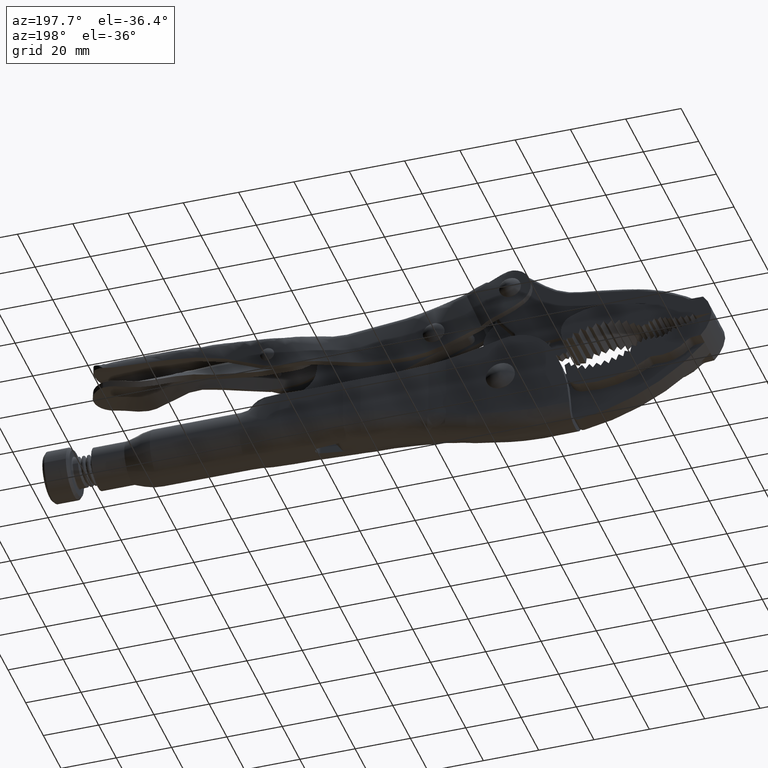
[diagram: clean part render]
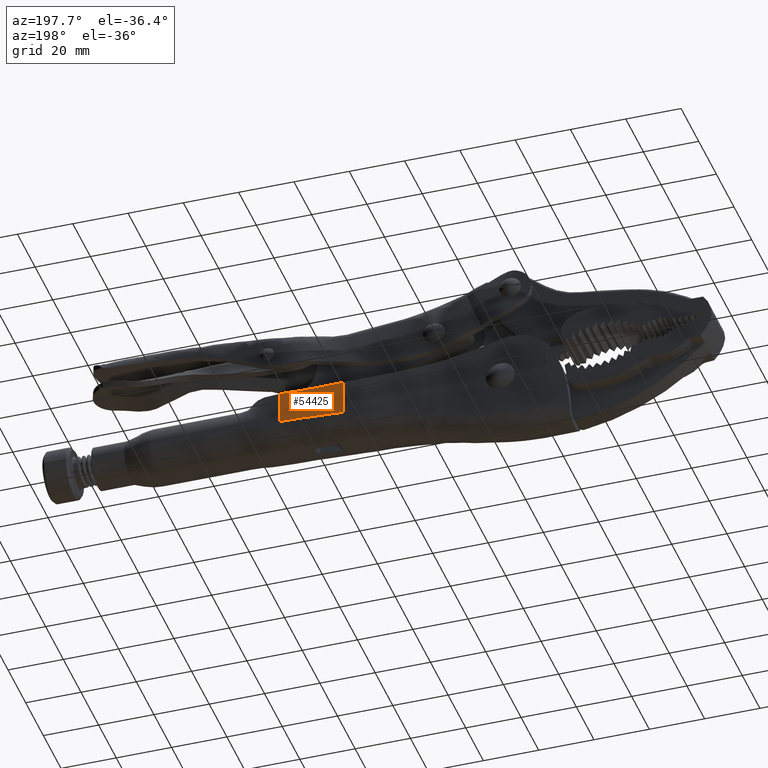
[diagram: same view with one face highlighted and labeled with its STEP entity id]
A machine part, auxiliary view. The second image highlights one B-rep face of the part: STEP entity #54425.
In plain terms, the highlighted planar face has unit normal (0, 1, 0).
Its self-contained STEP definition (entity closure, byte-faithful):
#1091 = CARTESIAN_POINT ( 'NONE',  ( 73.17799480393964000, -0.0000000000000000000, -2.578287438541687800 ) ) ;
#1423 = CARTESIAN_POINT ( 'NONE',  ( 68.42975549948826600, -1.734723475976807100E-016, -2.734829204559075400 ) ) ;
#3466 = CARTESIAN_POINT ( 'NONE',  ( 57.27168752889000600, -0.0000000000000000000, -3.366056553170520400 ) ) ;
#3798 = CARTESIAN_POINT ( 'NONE',  ( 53.35018023591223400, -6.443258625056711200E-015, -3.651022074881282700 ) ) ;
#4703 = CARTESIAN_POINT ( 'NONE',  ( 67.11109332845146000, -0.0000000000000000000, -2.749195352996126400 ) ) ;
#5032 = CARTESIAN_POINT ( 'NONE',  ( 64.69527265387840500, -0.0000000000000000000, -2.836272074001478800 ) ) ;
#5362 = CARTESIAN_POINT ( 'NONE',  ( 60.88633239331726800, -0.0000000000000000000, -3.077524811616698700 ) ) ;
#5845 = CARTESIAN_POINT ( 'NONE',  ( 62.50000000000004300, 0.0000000000000000000, 274.0000000000000000 ) ) ;
#8837 = CARTESIAN_POINT ( 'NONE',  ( 71.31683018668206800, -0.0000000000000000000, -2.661741187933554600 ) ) ;
#10861 = CARTESIAN_POINT ( 'NONE',  ( 59.13185581688856700, -0.0000000000000000000, -3.217879864619166000 ) ) ;
#11194 = CARTESIAN_POINT ( 'NONE',  ( 57.16213177190426400, -0.0000000000000000000, -3.374734514449848600 ) ) ;
#12426 = CARTESIAN_POINT ( 'NONE',  ( 66.68724049799362800, -0.0000000000000000000, -2.759820723616766900 ) ) ;
#12770 = CARTESIAN_POINT ( 'NONE',  ( 64.05374986327396400, 0.0000000000000000000, -2.867671949104759300 ) ) ;
#13102 = CARTESIAN_POINT ( 'NONE',  ( 60.86389793614946300, 0.0000000000000000000, -3.079247896715798100 ) ) ;
#13591 = DIRECTION ( 'NONE',  ( 1.597254823163549900E-014, 0.0000000000000000000, 1.000000000000000000 ) ) ;
#15703 = CARTESIAN_POINT ( 'NONE',  ( 76.20000000000001700, 0.0000000000000000000, 9.354369013958475400 ) ) ;
#16260 = CARTESIAN_POINT ( 'NONE',  ( 74.87103883957591700, -0.0000000000000000000, -2.517973482735973900 ) ) ;
#16585 = CARTESIAN_POINT ( 'NONE',  ( 70.57307368495916900, -0.0000000000000000000, -2.691042939438932400 ) ) ;
#17159 = ORIENTED_EDGE ( 'NONE', *, *, #98796, .T. ) ;
#18623 = CARTESIAN_POINT ( 'NONE',  ( 59.03403124182230500, -0.0000000000000000000, -3.225716909355989000 ) ) ;
#18956 = CARTESIAN_POINT ( 'NONE',  ( 57.13080272684001700, 0.0000000000000000000, -3.377215503782807500 ) ) ;
#20184 = CARTESIAN_POINT ( 'NONE',  ( 66.58313923546575100, -0.0000000000000000000, -2.762718072942212700 ) ) ;
#20500 = CARTESIAN_POINT ( 'NONE',  ( 68.42975549948826600, -1.734723475976807100E-016, -2.734829204559075400 ) ) ;
#20525 = CARTESIAN_POINT ( 'NONE',  ( 62.02049169465993800, -0.0000000000000000000, -2.994070282451958100 ) ) ;
#20787 = AXIS2_PLACEMENT_3D ( 'NONE', #92848, #24605, #77871 ) ;
#20854 = CARTESIAN_POINT ( 'NONE',  ( 59.93587830136474500, -0.0000000000000000000, -3.153479437144402400 ) ) ;
#24029 = CARTESIAN_POINT ( 'NONE',  ( 74.41377759333184400, -0.0000000000000000000, -2.531511372549128900 ) ) ;
#24371 = CARTESIAN_POINT ( 'NONE',  ( 70.42029518156611800, -0.0000000000000000000, -2.696488890022616000 ) ) ;
#24605 = DIRECTION ( 'NONE',  ( 0.0000000000000000000, 1.000000000000000000, -0.0000000000000000000 ) ) ;
#25404 = CARTESIAN_POINT ( 'NONE',  ( 59.25877223258523700, -0.0000000000000000000, -3.207712578843260800 ) ) ;
#26424 = CARTESIAN_POINT ( 'NONE',  ( 59.01040553327694500, -0.0000000000000000000, -3.227609679769798800 ) ) ;
#26747 = CARTESIAN_POINT ( 'NONE',  ( 56.16615432214003100, -0.0000000000000000000, -3.453070881328685900 ) ) ;
#27093 = CARTESIAN_POINT ( 'NONE',  ( 53.35018023591223400, -6.443258625056711200E-015, -3.651022074881282700 ) ) ;
#27652 = CARTESIAN_POINT ( 'NONE',  ( 67.70314035438613600, -0.0000000000000000000, -2.739561881867518700 ) ) ;
#27977 = CARTESIAN_POINT ( 'NONE',  ( 66.55045226551465000, 0.0000000000000000000, -2.763648218271011400 ) ) ;
#28312 = CARTESIAN_POINT ( 'NONE',  ( 61.17026931045444400, -0.0000000000000000000, -3.055945218565035300 ) ) ;
#29334 = VERTEX_POINT ( 'NONE', #87056 ) ;
#31768 = CARTESIAN_POINT ( 'NONE',  ( 74.29670722494229600, -0.0000000000000000000, -2.535365575200042800 ) ) ;
#32099 = CARTESIAN_POINT ( 'NONE',  ( 70.38588003499778300, -0.0000000000000000000, -2.697674416508173900 ) ) ;
#34097 = CARTESIAN_POINT ( 'NONE',  ( 59.00199054175815400, 0.0000000000000000000, -3.228283848968529900 ) ) ;
#34419 = CARTESIAN_POINT ( 'NONE',  ( 76.20000000000001700, 0.0000000000000000000, -2.381180459231225600 ) ) ;
#34433 = CARTESIAN_POINT ( 'NONE',  ( 55.46800288628160300, -0.0000000000000000000, -3.505958854761648300 ) ) ;
#35317 = CARTESIAN_POINT ( 'NONE',  ( 67.53620045940340300, -0.0000000000000000000, -2.741700336321255500 ) ) ;
#35650 = CARTESIAN_POINT ( 'NONE',  ( 65.78542179752577100, -0.0000000000000000000, -2.788152246040868800 ) ) ;
#35985 = CARTESIAN_POINT ( 'NONE',  ( 60.95553799195609200, -0.0000000000000000000, -3.072223670304561300 ) ) ;
#39452 = CARTESIAN_POINT ( 'NONE',  ( 74.26867152278178700, -0.0000000000000000000, -2.536310829826944300 ) ) ;
#39755 = EDGE_CURVE ( 'NONE', #29334, #50476, #58046, .T. ) ;
#39783 = CARTESIAN_POINT ( 'NONE',  ( 70.37793302156082100, 0.0000000000000000000, -2.697946151906294600 ) ) ;
#40032 = EDGE_CURVE ( 'NONE', #43888, #47994, #75810, .T. ) ;
#40128 = VECTOR ( 'NONE', #87624, 1000.000000000000000 ) ;
#41779 = CARTESIAN_POINT ( 'NONE',  ( 58.28627404918037800, -0.0000000000000000000, -3.285499857556334600 ) ) ;
#42105 = CARTESIAN_POINT ( 'NONE',  ( 55.28790268582943000, 0.0000000000000000000, -3.519266567707071100 ) ) ;
#43002 = CARTESIAN_POINT ( 'NONE',  ( 67.49962803650663500, -0.0000000000000000000, -2.742246899039043800 ) ) ;
#43329 = CARTESIAN_POINT ( 'NONE',  ( 64.94245131683756300, -0.0000000000000000000, -2.824493973885309700 ) ) ;
#43659 = CARTESIAN_POINT ( 'NONE',  ( 60.90171917967856500, -0.0000000000000000000, -3.076343890596396700 ) ) ;
#43888 = VERTEX_POINT ( 'NONE', #27093 ) ;
#44746 = B_SPLINE_CURVE_WITH_KNOTS ( 'NONE', 3,
 ( #92292, #76681, #62086, #16260, #69686, #24029, #77327, #31768, #84967, #39452, #92624, #47107, #1091, #54786, #8837, #62405, #16585, #70018, #24371, #77649, #32099, #85296, #39783, #92947, #47432, #1423 ),
 .UNSPECIFIED., .F., .F.,
 ( 4, 1, 1, 1, 1, 1, 1, 2, 2, 2, 1, 1, 1, 1, 1, 1, 2, 2, 4 ),
 ( 0.0000000000000000000, 0.1249999999998264700, 0.1874999999997423700, 0.2187499999997028800, 0.2343749999996831100, 0.2421874999996732600, 0.2460937499996707400, 0.2480468749996694900, 0.2499999999996682100, 0.4999999999997881700, 0.6249999999998481200, 0.6874999999998806500, 0.7187499999998938600, 0.7343749999999039700, 0.7421874999999053000, 0.7460937499999020800, 0.7480468749999004100, 0.7499999999998988600, 1.000000000000000000 ),
 .UNSPECIFIED. ) ;
#47010 = PLANE ( 'NONE',  #20787 ) ;
#47107 = CARTESIAN_POINT ( 'NONE',  ( 73.82600207085920400, -0.0000000000000000000, -2.551357853544120600 ) ) ;
#47432 = CARTESIAN_POINT ( 'NONE',  ( 69.00589744066005000, -0.0000000000000000000, -2.734814477458467100 ) ) ;
#47994 = VERTEX_POINT ( 'NONE', #67727 ) ;
#49433 = CARTESIAN_POINT ( 'NONE',  ( 57.42318156972697100, -0.0000000000000000000, -3.354050553666886100 ) ) ;
#49768 = CARTESIAN_POINT ( 'NONE',  ( 54.18096931684080200, -0.0000000000000000000, -3.596723837727290100 ) ) ;
#50348 = CARTESIAN_POINT ( 'NONE',  ( 68.42975549948826600, -1.734723475976807100E-016, -2.734829204559075400 ) ) ;
#50476 = VERTEX_POINT ( 'NONE', #15703 ) ;
#50672 = CARTESIAN_POINT ( 'NONE',  ( 67.33893524420848600, 0.0000000000000000000, -2.744781158597156400 ) ) ;
#50756 = ORIENTED_EDGE ( 'NONE', *, *, #91134, .T. ) ;
#51002 = CARTESIAN_POINT ( 'NONE',  ( 64.73664588020936600, -0.0000000000000000000, -2.834270104857425900 ) ) ;
#51329 = CARTESIAN_POINT ( 'NONE',  ( 60.88889713651121800, -0.0000000000000000000, -3.077327887688178000 ) ) ;
#54425 = ADVANCED_FACE ( 'NONE', ( #97743 ), #47010, .T. ) ;
#54786 = CARTESIAN_POINT ( 'NONE',  ( 71.88331922264636400, -0.0000000000000000000, -2.636978184148462700 ) ) ;
#55513 = ORIENTED_EDGE ( 'NONE', *, *, #39755, .F. ) ;
#57118 = CARTESIAN_POINT ( 'NONE',  ( 57.19512136980051800, -0.0000000000000000000, -3.372121790438608700 ) ) ;
#57429 = CARTESIAN_POINT ( 'NONE',  ( 53.35018023591228300, 0.0000000000000000000, -2.381180459231225600 ) ) ;
#58046 = LINE ( 'NONE', #34419, #40128 ) ;
#58329 = CARTESIAN_POINT ( 'NONE',  ( 66.83091805842079200, -0.0000000000000000000, -2.756002692417272000 ) ) ;
#58649 = CARTESIAN_POINT ( 'NONE',  ( 64.67254824577813100, 0.0000000000000000000, -2.837378682939212900 ) ) ;
#58964 = CARTESIAN_POINT ( 'NONE',  ( 60.88384510367700400, 0.0000000000000000000, -3.077715834460337300 ) ) ;
#59452 = DIRECTION ( 'NONE',  ( -0.0000000000000000000, -1.000000000000000000, -0.0000000000000000000 ) ) ;
#59622 = EDGE_CURVE ( 'NONE', #74496, #43888, #60965, .T. ) ;
#60965 = B_SPLINE_CURVE_WITH_KNOTS ( 'NONE', 3,
 ( #50348, #95828, #73224, #27652, #80861, #35317, #88518, #43002, #96160, #50672, #4703, #58329, #12426, #65928, #20184, #73565, #27977, #81191, #35650, #88844, #43329, #96486, #51002, #5032, #58649, #12770, #66250, #20525, #73895, #28312, #81509, #35985, #89175, #43659, #96806, #51329, #5362, #58964, #13102, #66583, #20854, #74213, #25404, #10861, #64403, #18623, #72020, #26424, #79643, #34097, #87304, #41779, #94947, #49433, #3466, #57118, #11194, #64730, #18956, #72354, #26747, #79974, #34433, #87640, #42105, #95265, #49768, #3798 ),
 .UNSPECIFIED., .F., .F.,
 ( 4, 1, 1, 1, 1, 2, 2, 1, 1, 1, 1, 2, 2, 1, 1, 1, 1, 2, 2, 1, 1, 1, 1, 1, 1, 1, 1, 1, 2, 2, 1, 1, 1, 1, 1, 1, 1, 1, 2, 2, 1, 1, 1, 1, 1, 2, 2, 1, 1, 2, 2, 4 ),
 ( 0.0000000000000000000, 0.03125000000085453200, 0.04687500000128042000, 0.05468750000149336800, 0.05859375000159983800, 0.06054687500165489800, 0.06250000000170995200, 0.09375000000259682600, 0.1093750000030388700, 0.1171875000032585700, 0.1210937500033671100, 0.1230468750034213900, 0.1250000000034756600, 0.1875000000052298400, 0.2187500000061055300, 0.2343750000065434000, 0.2421875000067623400, 0.2460937500068731400, 0.2500000000069839100, 0.3750000000105404000, 0.4375000000123199200, 0.4687500000132097100, 0.4843750000136539700, 0.4921875000138761200, 0.4960937500139871400, 0.4980468750140426600, 0.4990234375140704100, 0.4995117187640849000, 0.4997558593890915600, 0.5000000000140981700, 0.5625000000124454900, 0.5937500000116191500, 0.6093750000112063700, 0.6171875000110005300, 0.6210937500108975100, 0.6230468750108456600, 0.6240234375108196800, 0.6245117187608066900, 0.6247558593858003600, 0.6250000000107939200, 0.6875000000089992500, 0.7187500000081019600, 0.7343750000076538800, 0.7421875000074298300, 0.7460937500073184800, 0.7480468750072627500, 0.7500000000072070100, 0.8125000000054067900, 0.8437500000045060600, 0.8593750000040548700, 0.8750000000036035600, 1.000000000000000000 ),
 .UNSPECIFIED. ) ;
#62086 = CARTESIAN_POINT ( 'NONE',  ( 75.45329237991879300, -0.0000000000000000000, -2.504599388063665900 ) ) ;
#62405 = CARTESIAN_POINT ( 'NONE',  ( 70.79741163208441900, -0.0000000000000000000, -2.682612213234142600 ) ) ;
#64403 = CARTESIAN_POINT ( 'NONE',  ( 59.06689060144373800, -0.0000000000000000000, -3.223084410595628700 ) ) ;
#64730 = CARTESIAN_POINT ( 'NONE',  ( 57.14009970003666400, -0.0000000000000000000, -3.376479294148591500 ) ) ;
#65928 = CARTESIAN_POINT ( 'NONE',  ( 66.61450423642703800, -0.0000000000000000000, -2.761833329588744100 ) ) ;
#66250 = CARTESIAN_POINT ( 'NONE',  ( 63.13246101457284700, -0.0000000000000000000, -2.919631557293256700 ) ) ;
#66583 = CARTESIAN_POINT ( 'NONE',  ( 60.61363992533579600, -0.0000000000000000000, -3.099223442763471100 ) ) ;
#67727 = CARTESIAN_POINT ( 'NONE',  ( 53.35018023591229800, -6.251509296417499300E-015, 9.158007864529221100 ) ) ;
#69686 = CARTESIAN_POINT ( 'NONE',  ( 74.56815716026913800, -0.0000000000000000000, -2.526664712248655400 ) ) ;
#70018 = CARTESIAN_POINT ( 'NONE',  ( 70.46974754393991700, -0.0000000000000000000, -2.694757105929950700 ) ) ;
#72020 = CARTESIAN_POINT ( 'NONE',  ( 59.01750737403670400, -0.0000000000000000000, -3.227040715179199500 ) ) ;
#72354 = CARTESIAN_POINT ( 'NONE',  ( 56.70861364383145500, 0.0000000000000000000, -3.410645018629185900 ) ) ;
#73224 = CARTESIAN_POINT ( 'NONE',  ( 67.95936653209767500, -0.0000000000000000000, -2.737106920155079900 ) ) ;
#73507 = EDGE_LOOP ( 'NONE', ( #88766, #50756, #55513, #17159, #80460 ) ) ;
#73565 = CARTESIAN_POINT ( 'NONE',  ( 66.56218649761757400, -0.0000000000000000000, -2.763312834719393200 ) ) ;
#73895 = CARTESIAN_POINT ( 'NONE',  ( 61.45522395226302600, -0.0000000000000000000, -3.034744440599338700 ) ) ;
#74213 = CARTESIAN_POINT ( 'NONE',  ( 59.50054900320703400, -0.0000000000000000000, -3.188345231999530700 ) ) ;
#74496 = VERTEX_POINT ( 'NONE', #20500 ) ;
#75810 = LINE ( 'NONE', #57429, #96037 ) ;
#76681 = CARTESIAN_POINT ( 'NONE',  ( 75.91206429746270600, 0.0000000000000000000, -2.500007360092642500 ) ) ;
#77327 = CARTESIAN_POINT ( 'NONE',  ( 74.33585312804230200, -0.0000000000000000000, -2.534059964085399100 ) ) ;
#77649 = CARTESIAN_POINT ( 'NONE',  ( 70.39612167741313400, -0.0000000000000000000, -2.697323457280738100 ) ) ;
#77871 = DIRECTION ( 'NONE',  ( 0.0000000000000000000, 0.0000000000000000000, 1.000000000000000000 ) ) ;
#79643 = CARTESIAN_POINT ( 'NONE',  ( 59.00566648762871600, -0.0000000000000000000, -3.227989349327482500 ) ) ;
#79974 = CARTESIAN_POINT ( 'NONE',  ( 55.65864442092533400, -0.0000000000000000000, -3.491719670350848000 ) ) ;
#80460 = ORIENTED_EDGE ( 'NONE', *, *, #59622, .T. ) ;
#80861 = CARTESIAN_POINT ( 'NONE',  ( 67.58944425884519100, -0.0000000000000000000, -2.740959210249114700 ) ) ;
#81191 = CARTESIAN_POINT ( 'NONE',  ( 66.24412608416243100, 0.0000000000000000000, -2.772451877020519100 ) ) ;
#81509 = CARTESIAN_POINT ( 'NONE',  ( 61.02721179689769600, -0.0000000000000000000, -3.066761532270885200 ) ) ;
#83254 = DIRECTION ( 'NONE',  ( 0.0000000000000000000, 0.0000000000000000000, 1.000000000000000000 ) ) ;
#84967 = CARTESIAN_POINT ( 'NONE',  ( 74.27989105137326900, -0.0000000000000000000, -2.535931833251998700 ) ) ;
#85296 = CARTESIAN_POINT ( 'NONE',  ( 70.37907859134149600, -0.0000000000000000000, -2.697906897669882600 ) ) ;
#86757 = AXIS2_PLACEMENT_3D ( 'NONE', #5845, #59452, #13591 ) ;
#87056 = CARTESIAN_POINT ( 'NONE',  ( 76.20000000000001700, 0.0000000000000000000, -2.500000000000004000 ) ) ;
#87304 = CARTESIAN_POINT ( 'NONE',  ( 58.72704487678966200, 0.0000000000000000000, -3.250311232248868100 ) ) ;
#87624 = DIRECTION ( 'NONE',  ( 0.0000000000000000000, 0.0000000000000000000, 1.000000000000000000 ) ) ;
#87640 = CARTESIAN_POINT ( 'NONE',  ( 55.34687802068225400, -0.0000000000000000000, -3.514935070521519200 ) ) ;
#88518 = CARTESIAN_POINT ( 'NONE',  ( 67.51415402714168600, -0.0000000000000000000, -2.742027060755318800 ) ) ;
#88766 = ORIENTED_EDGE ( 'NONE', *, *, #40032, .T. ) ;
#88844 = CARTESIAN_POINT ( 'NONE',  ( 65.22727366555021400, -0.0000000000000000000, -2.811535675836321700 ) ) ;
#89175 = CARTESIAN_POINT ( 'NONE',  ( 60.91966482744454900, -0.0000000000000000000, -3.074968234616587600 ) ) ;
#91134 = EDGE_CURVE ( 'NONE', #47994, #50476, #98620, .T. ) ;
#92292 = CARTESIAN_POINT ( 'NONE',  ( 76.20000000000001700, 0.0000000000000000000, -2.500000000000004000 ) ) ;
#92624 = CARTESIAN_POINT ( 'NONE',  ( 74.26080947490342500, 0.0000000000000000000, -2.536577486725390500 ) ) ;
#92848 = CARTESIAN_POINT ( 'NONE',  ( -73.24167500811110200, 0.0000000000000000000, -2.381180459231225600 ) ) ;
#92947 = CARTESIAN_POINT ( 'NONE',  ( 69.65341781570271000, -0.0000000000000000000, -2.722583789721013200 ) ) ;
#94947 = CARTESIAN_POINT ( 'NONE',  ( 57.71961654203401100, -0.0000000000000000000, -3.330536454789799500 ) ) ;
#95265 = CARTESIAN_POINT ( 'NONE',  ( 54.80914503531254700, -0.0000000000000000000, -3.554095287936990900 ) ) ;
#95828 = CARTESIAN_POINT ( 'NONE',  ( 68.22841866150133700, 0.0000000000000000000, -2.735585001631422500 ) ) ;
#96037 = VECTOR ( 'NONE', #83254, 1000.000000000000000 ) ;
#96160 = CARTESIAN_POINT ( 'NONE',  ( 67.49451100767908000, 0.0000000000000000000, -2.742325308546614600 ) ) ;
#96486 = CARTESIAN_POINT ( 'NONE',  ( 64.79860307179994500, -0.0000000000000000000, -2.831289768697619300 ) ) ;
#96806 = CARTESIAN_POINT ( 'NONE',  ( 60.89274408941803100, -0.0000000000000000000, -3.077032562042250100 ) ) ;
#97743 = FACE_OUTER_BOUND ( 'NONE', #73507, .T. ) ;
#98620 = CIRCLE ( 'NONE', #86757, 265.0000000000001100 ) ;
#98796 = EDGE_CURVE ( 'NONE', #29334, #74496, #44746, .T. ) ;